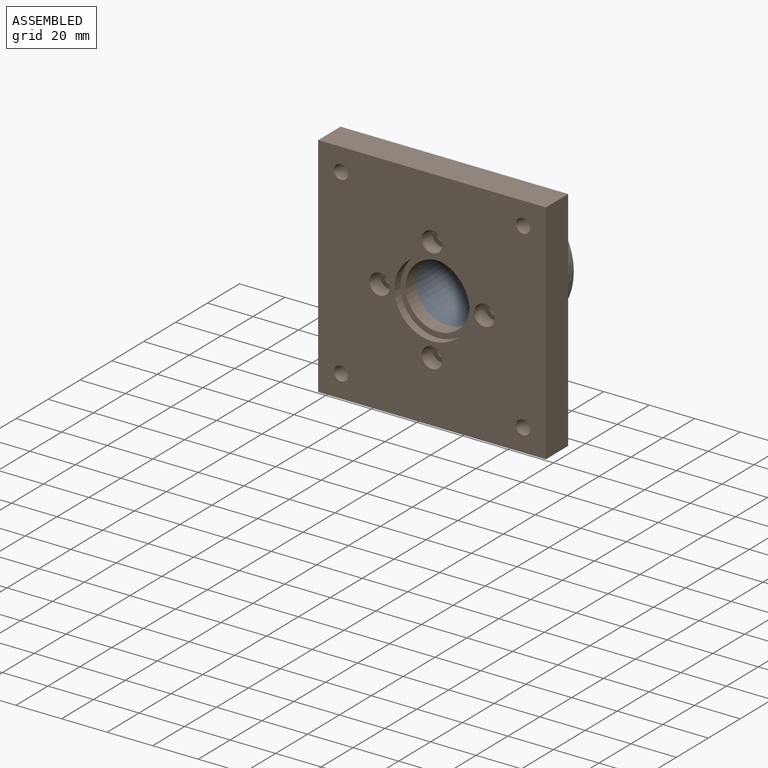
[diagram: assembled view]
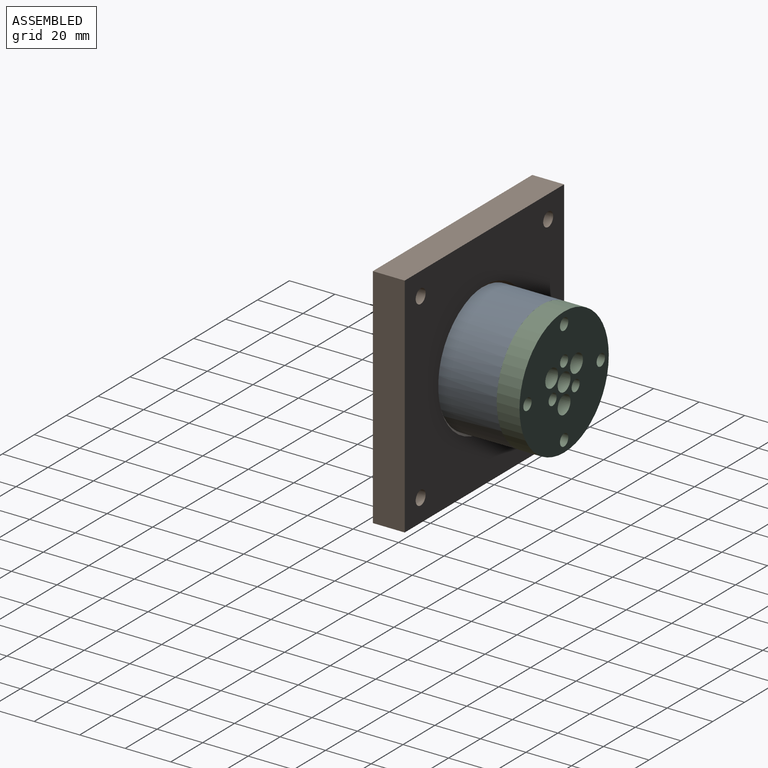
[diagram: assembled view, second angle]
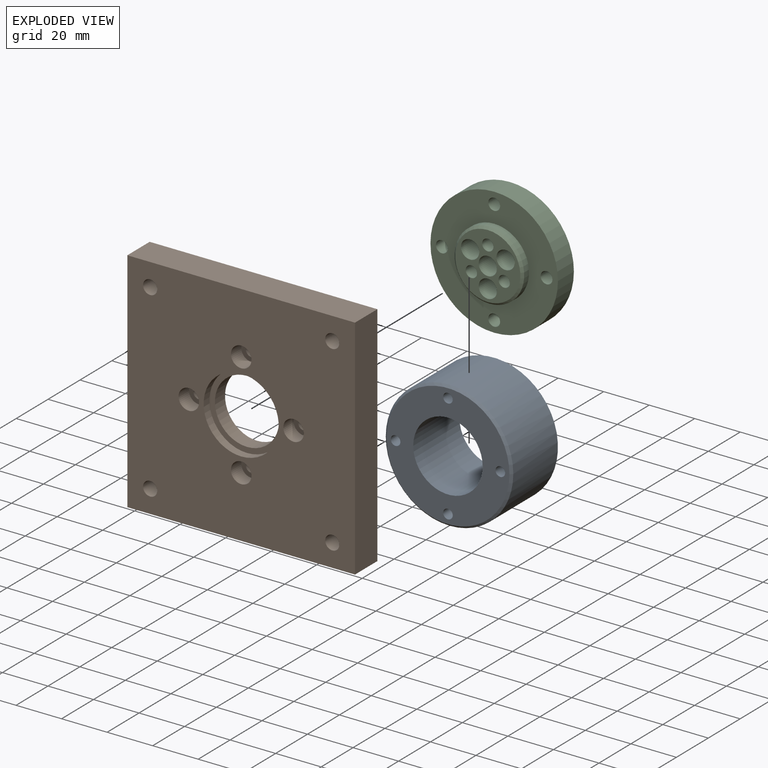
[diagram: exploded view]
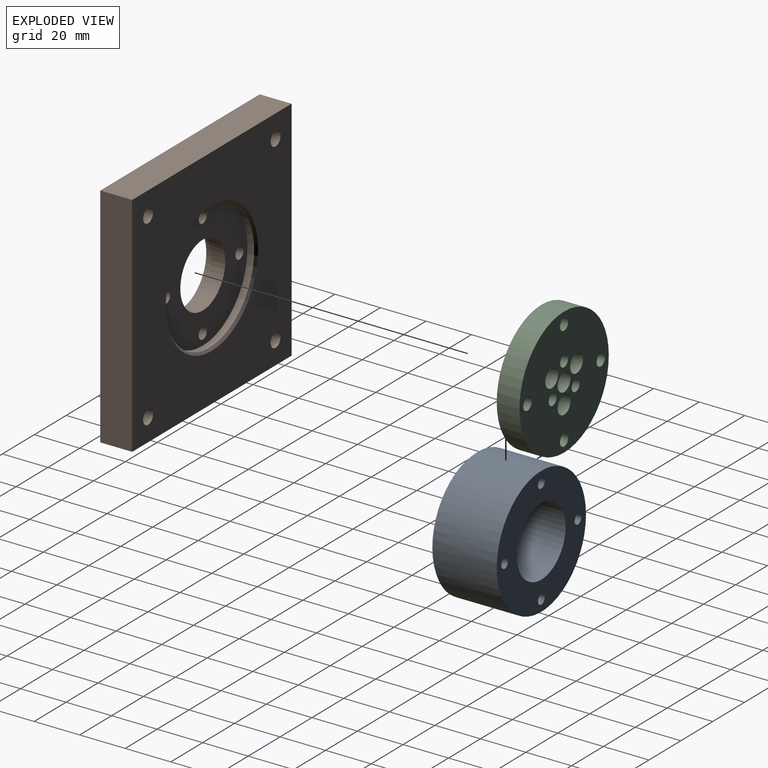
[diagram: exploded view, second angle]
ASSEMBLY  parts=3 mates=6
PART A: 9 faces, bbox 29x56x56 mm
  f0: cylinder r=28mm len=56mm, axis (-1,0,0), area 4926mm2, adj f1,f8
  f1: plane 56x56mm, normal (-1,0,0), area 1677mm2, adj f0,f2,f4,f5,f6,f7
  f2: cylinder r=15.25mm len=30.5mm, axis (-1,0,0), area 2778.7mm2, adj f1,f3
  f3: plane 54x54mm, normal (1,0,0), area 1504.2mm2, adj f2,f4,f5,f6,f7,f8
  f4: cylinder r=2.1mm len=29mm, axis (-1,0,0), area 382.6mm2, adj f1,f3
  f5: cylinder r=2.1mm len=29mm, axis (-1,0,0), area 382.6mm2, adj f1,f3
  f6: cylinder r=2.1mm len=29mm, axis (-1,0,0), area 382.6mm2, adj f1,f3
  f7: cylinder r=2.1mm len=29mm, axis (-1,0,0), area 382.6mm2, adj f1,f3
  f8: cone r=28mm half-angle=45deg, axis (-1,0,0), area 244.4mm2, adj f0,f3
PART B: 28 faces, bbox 100x14x100 mm
  f0: plane 100x14mm, normal (0,0,1), area 1400mm2, adj f1,f3,f4,f5
  f1: plane 100x14mm, normal (-1,0,0), area 1400mm2, adj f0,f2,f4,f5
  f2: plane 100x14mm, normal (0,0,-1), area 1400mm2, adj f1,f3,f4,f5
  f3: plane 100x14mm, normal (1,0,0), area 1400mm2, adj f0,f2,f4,f5
  f4: plane 100x100mm, normal (0,-1,0), area 8769.5mm2, adj f0,f1,f2,f3,f8,f9,f10,f11
  f5: plane 100x100mm, normal (0,1,0), area 7237.2mm2, adj f0,f1,f2,f3,f8,f9,f10,f11
  f6: cylinder r=28mm len=56mm, axis (0,1,0), area 527.8mm2, adj f7,f27
  f7: plane 56x56mm, normal (0,1,0), area 1756.7mm2, adj f6,f12,f15,f18,f21,f24
  f8: cylinder r=3.1mm len=14mm, axis (0,-1,0), area 272.7mm2, adj f4,f5
  f9: cylinder r=3.1mm len=14mm, axis (0,-1,0), area 272.7mm2, adj f4,f5
  f10: cylinder r=3.1mm len=14mm, axis (0,-1,0), area 272.7mm2, adj f4,f5
  f11: cylinder r=3.1mm len=14mm, axis (0,-1,0), area 272.7mm2, adj f4,f5
  f12: cylinder r=14.1mm len=28.2mm, axis (0,1,0), area 562.6mm2, adj f7,f14
  f13: cylinder r=16.5mm len=33mm, axis (0,1,0), area 378.4mm2, adj f4,f14
  f14: plane 33x33mm, normal (0,-1,0), area 230.7mm2, adj f12,f13
  f15: cylinder r=2.55mm len=5.1mm, axis (0,-1,0), area 56.1mm2, adj f7,f16
  f16: plane 9x9mm, normal (0,-1,0), area 43.2mm2, adj f15,f17
  f17: cylinder r=4.5mm len=9mm, axis (0,-1,0), area 183.8mm2, adj f4,f16
  f18: cylinder r=2.55mm len=5.1mm, axis (0,-1,0), area 56.1mm2, adj f7,f19
  f19: plane 9x9mm, normal (0,-1,0), area 43.2mm2, adj f18,f20
  f20: cylinder r=4.5mm len=9mm, axis (0,-1,0), area 183.8mm2, adj f4,f19
  f21: cylinder r=2.55mm len=5.1mm, axis (0,-1,0), area 56.1mm2, adj f7,f22
  f22: plane 9x9mm, normal (0,-1,0), area 43.2mm2, adj f21,f23
  f23: cylinder r=4.5mm len=9mm, axis (0,-1,0), area 183.8mm2, adj f4,f22
  f24: cylinder r=2.55mm len=5.1mm, axis (0,-1,0), area 56.1mm2, adj f7,f25
  f25: plane 9x9mm, normal (0,-1,0), area 43.2mm2, adj f24,f26
  f26: cylinder r=4.5mm len=9mm, axis (0,-1,0), area 183.8mm2, adj f4,f25
  f27: cone r=28mm half-angle=45deg, axis (0,1,0), area 253.2mm2, adj f5,f6
PART C: 17 faces, bbox 56x14x56 mm
  f0: cylinder r=28mm len=56mm, axis (0,1,0), area 1759.3mm2, adj f1,f2
  f1: plane 56x56mm, normal (0,-1,0), area 2118.1mm2, adj f0,f3,f4,f5,f6,f10,f11,f12
  f2: plane 56x56mm, normal (0,1,0), area 1642.6mm2, adj f0,f3,f4,f5,f6,f7
  f3: cylinder r=2.6mm len=10mm, axis (0,-1,0), area 163.4mm2, adj f1,f2
  f4: cylinder r=2.6mm len=10mm, axis (0,-1,0), area 163.4mm2, adj f1,f2
  f5: cylinder r=2.6mm len=10mm, axis (0,-1,0), area 163.4mm2, adj f1,f2
  f6: cylinder r=2.6mm len=10mm, axis (0,-1,0), area 163.4mm2, adj f1,f2
  f7: cylinder r=15.3mm len=30.6mm, axis (0,-1,0), area 288.4mm2, adj f2,f9
  f8: plane 28.6x28.6mm, normal (0,1,0), area 382.5mm2, adj f9,f10,f11,f12,f13,f14,f15,f16
  f9: cone r=14.3mm half-angle=45deg, axis (0,-1,0), area 131.5mm2, adj f7,f8
  f10: cylinder r=2.5mm len=14mm, axis (0,-1,0), area 219.9mm2, adj f1,f8
  f11: cylinder r=2.5mm len=14mm, axis (0,-1,0), area 219.9mm2, adj f1,f8
  f12: cylinder r=2.5mm len=14mm, axis (0,-1,0), area 219.9mm2, adj f1,f8
  f13: cylinder r=4mm len=14mm, axis (0,-1,0), area 351.9mm2, adj f1,f8
  f14: cylinder r=4mm len=14mm, axis (0,-1,0), area 351.9mm2, adj f1,f8
  f15: cylinder r=4mm len=14mm, axis (0,-1,0), area 351.9mm2, adj f1,f8
  f16: cylinder r=4mm len=14mm, axis (0,-1,0), area 351.9mm2, adj f1,f8
PLACE A rot(axis=(0.58,-0.58,-0.58),120deg) t=(42.84,-1.27,82.36)mm
PLACE B rot(axis=(-0.21,0.39,0.9),0deg) t=(42.84,-26.27,82.36)mm
PLACE C rot(axis=(0,0,-1),180deg) t=(42.84,-1.27,82.36)mm
MATE cylindrical A.f0 <-> C.f0  axis (0,1,0) through (42.84,-1.27,82.36)mm
MATE cylindrical C.f4 <-> A.f6  axis (0,1,0) through (42.84,8.73,59.36)mm
MATE cylindrical B.f18 <-> A.f6  axis (0,-1,0) through (42.84,-32.02,59.36)mm
MATE cylindrical A.f0 <-> B.f12  axis (0,1,0) through (42.84,-15.77,82.36)mm
MATE planar C.f0 <-> A.f0  axis (0,-1,0) through (42.84,-1.27,82.36)mm
MATE planar B.f13 <-> A.f0  axis (0,1,0) through (42.84,-30.27,82.36)mm
